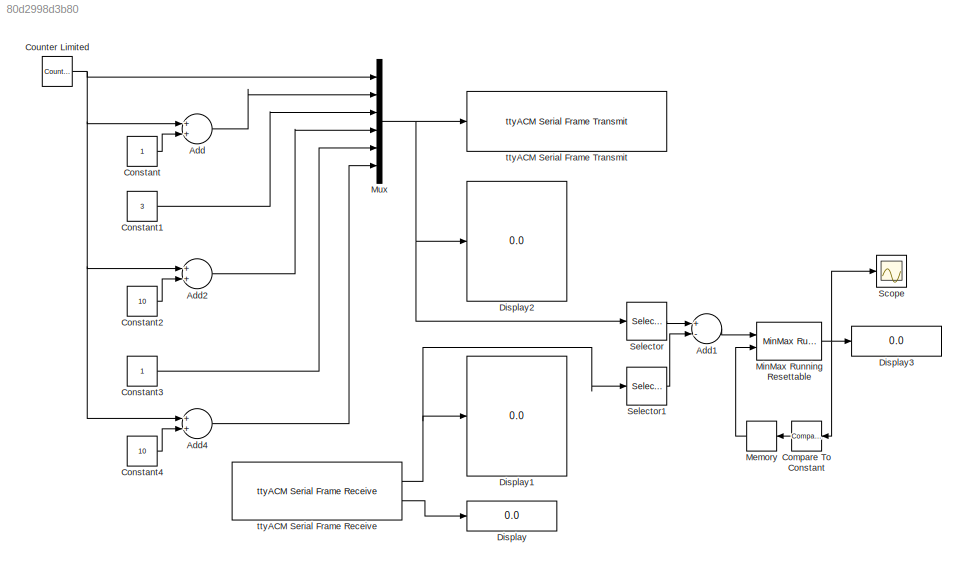
MODEL slx_80d2998d3b80
KIND model
CONFIG AbsTol = auto
CONFIG FixedStep = 0.1
CONFIG MaxStep = auto
CONFIG MinStep = auto
CONFIG RelTol = 1e-3
CONFIG SampleTimeConstraint = Unconstrained
CONFIG Solver = FixedStepAuto
CONFIG SolverMode = SingleTasking
CONFIG SolverName = FixedStepAuto
CONFIG StartTime = 0.0
CONFIG StopTime = inf
BLOCK [Sum] Add
  InputSameDT = off
  OutDataTypeStr = Inherit: Inherit via internal rule
  Ports = [2, 1]
  SaturateOnIntegerOverflow = off
BLOCK [Sum] Add1
  InputSameDT = off
  Inputs = +-
  OutDataTypeStr = Inherit: Inherit via internal rule
  Ports = [2, 1]
  SaturateOnIntegerOverflow = off
BLOCK [Sum] Add2
  InputSameDT = off
  OutDataTypeStr = Inherit: Inherit via internal rule
  Ports = [2, 1]
  SaturateOnIntegerOverflow = off
BLOCK [Sum] Add4
  InputSameDT = off
  OutDataTypeStr = Inherit: Inherit via internal rule
  Ports = [2, 1]
  SaturateOnIntegerOverflow = off
BLOCK [Reference] Compare To Constant  REF=simulink/Logic and Bit
Operations/Compare
To Constant
  Ports = [1, 1]
  SourceBlock = simulink/Logic and Bit\nOperations/Compare\nTo Constant
  SourceType = Compare To Constant
BLOCK [Constant] Constant
  OutDataTypeStr = uint8
BLOCK [Constant] Constant1
  OutDataTypeStr = uint8
  Value = 3
BLOCK [Constant] Constant2
  OutDataTypeStr = uint8
  Value = 10
BLOCK [Constant] Constant3
  OutDataTypeStr = uint8
BLOCK [Constant] Constant4
  OutDataTypeStr = uint8
  Value = 10
BLOCK [Reference] Counter Limited  REF=simulink/Sources/Counter
Limited
  Ports = [0, 1]
  SourceBlock = simulink/Sources/Counter\nLimited
  SourceType = Counter Limited
BLOCK [Display] Display
  Decimation = 1
  Ports = [1]
BLOCK [Display] Display1
  Decimation = 1
  Ports = [1]
BLOCK [Display] Display2
  Decimation = 1
  Ports = [1]
BLOCK [Display] Display3
  Decimation = 1
  Ports = [1]
BLOCK [Memory] Memory
BLOCK [Reference] MinMax Running Resettable  REF=simulink/Math
Operations/MinMax
Running
Resettable
  Ports = [2, 1]
  SourceBlock = simulink/Math\nOperations/MinMax\nRunning\nResettable
  SourceType = MinMax Running Resettable
BLOCK [Mux] Mux
  DisplayOption = bar
  Inputs = 6
  Ports = [6, 1]
BLOCK [Scope] Scope
  Ports = [1]
  ScopeSpecificationString = Simulink.scopes.TimeScopeBlockCfg('CurrentConfiguration', extmgr.ConfigurationSet(extmgr.Configuration('Core','General UI',true),extmgr.Configuration('Core','Source UI',true),extmgr.Configuration('Sources','WiredSimulink',true),extmgr.Configuration('Visuals','Time Domain',true,'SerializedDisplays',{struct('MinYLimReal','0.9','MaxYLimReal','1.1','YLabelReal','','MinYLimMag','0.9','MaxYLimMag','1.1'...<+1779ch>
BLOCK [Selector] Selector
  IndexOptions = Index vector (dialog)
  Indices = [1]
  InputPortWidth = 6
  OutputSizes = 1
  Ports = [1, 1]
BLOCK [Selector] Selector1
  IndexOptions = Index vector (dialog)
  Indices = [1]
  InputPortWidth = 6
  OutputSizes = 1
  Ports = [1, 1]
BLOCK [Reference] ttyACM Serial Frame Receive  REF=RPi/ttyACM Serial Frame Receive
  Ports = [0, 2]
  SourceBlock = RPi/ttyACM Serial Frame Receive
  SourceType = rpiACMserialFrameRxClass
BLOCK [Reference] ttyACM Serial Frame Transmit  REF=RPi/ttyACM Serial Frame Transmit
  Ports = [1]
  SourceBlock = RPi/ttyACM Serial Frame Transmit
  SourceType = rpiACMserialFrameTxClass
LINE Add1:1 -> MinMax Running Resettable:1
LINE Add2:1 -> Mux:4
LINE Add4:1 -> Mux:6
LINE Add:1 -> Mux:2
LINE Compare To Constant:1 -> Memory:1
LINE Constant1:1 -> Mux:3
LINE Constant2:1 -> Add2:2
LINE Constant3:1 -> Mux:5
LINE Constant4:1 -> Add4:2
LINE Constant:1 -> Add:2
NET Counter Limited:1 -> Add2:1, Add4:1, Add:1, Mux:1
LINE Memory:1 -> MinMax Running Resettable:2
NET MinMax Running Resettable:1 -> Compare To Constant:1, Display3:1, Scope:1
NET Mux:1 -> Display2:1, Selector:1, ttyACM Serial Frame Transmit:1
LINE Selector1:1 -> Add1:2
LINE Selector:1 -> Add1:1
NET ttyACM Serial Frame Receive:1 -> Display1:1, Selector1:1
LINE ttyACM Serial Frame Receive:2 -> Display:1
note: NET lines group one-source signal fan-out (src -> all destinations, sorted); 1:1 wires keep LINE
